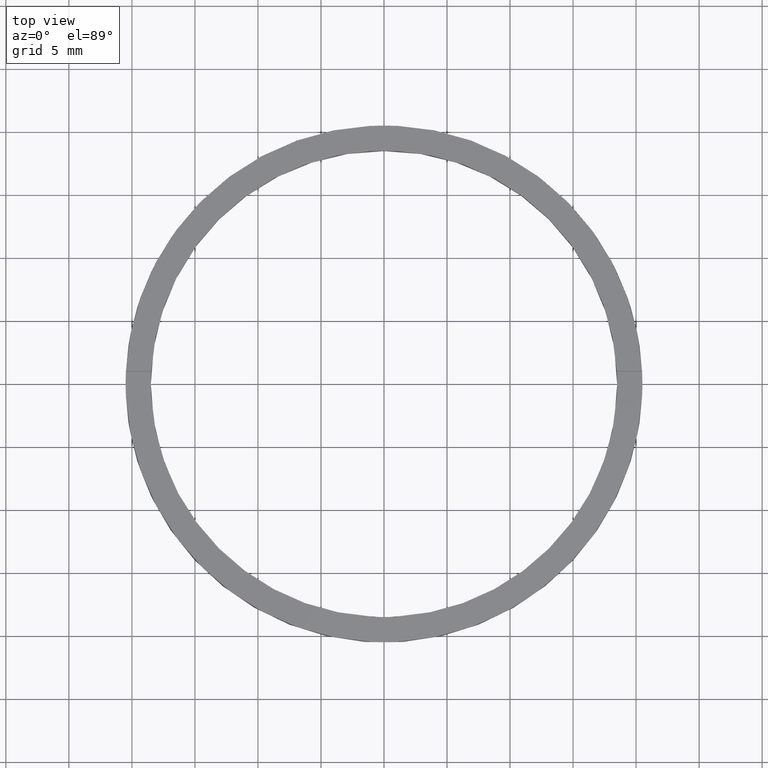
[diagram: clean part render]
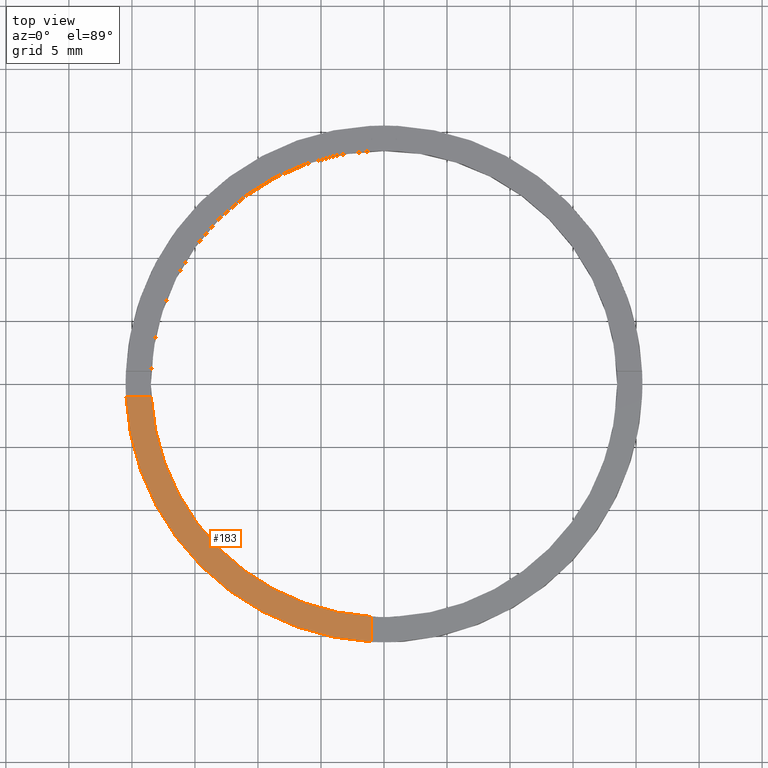
[diagram: same view with one face highlighted and labeled with its STEP entity id]
A machine part, top view. The second image highlights one B-rep face of the part: STEP entity #183.
In plain terms, the highlighted planar face has unit normal (0, 0, 1).
Its self-contained STEP definition (entity closure, byte-faithful):
#13 = CARTESIAN_POINT ( 'NONE',  ( -18.47295320191116375, -1.000000000000024425, 2.500000000000000000 ) ) ;
#47 = DIRECTION ( 'NONE',  ( 1.000000000000000000, 1.734723475976806848E-16, -0.000000000000000000 ) ) ;
#66 = CARTESIAN_POINT ( 'NONE',  ( -20.47559522944326815, -1.000000000000024647, 2.500000000000000000 ) ) ;
#134 = VECTOR ( 'NONE', #47, 1000.000000000000000 ) ;
#155 = VECTOR ( 'NONE', #366, 1000.000000000000000 ) ;
#183 = ADVANCED_FACE ( 'NONE', ( #236 ), #314, .T. ) ;
#189 = CARTESIAN_POINT ( 'NONE',  ( -1.000000000000162759, -10.50000000000018119, 2.500000000000000000 ) ) ;
#209 = CARTESIAN_POINT ( 'NONE',  ( -10.50000000000018652, -1.000000000000023093, 2.500000000000000000 ) ) ;
#236 = FACE_OUTER_BOUND ( 'NONE', #727, .T. ) ;
#290 = AXIS2_PLACEMENT_3D ( 'NONE', #547, #756, #760 ) ;
#300 = EDGE_CURVE ( 'NONE', #409, #497, #755, .T. ) ;
#302 = DIRECTION ( 'NONE',  ( 1.000000000000000000, 0.000000000000000000, -0.000000000000000000 ) ) ;
#309 = CARTESIAN_POINT ( 'NONE',  ( 0.000000000000000000, 0.000000000000000000, 2.500000000000000000 ) ) ;
#313 = AXIS2_PLACEMENT_3D ( 'NONE', #498, #586, #348 ) ;
#314 = PLANE ( 'NONE',  #561 ) ;
#348 = DIRECTION ( 'NONE',  ( 1.000000000000000000, 0.000000000000000000, 0.000000000000000000 ) ) ;
#354 = DIRECTION ( 'NONE',  ( 0.000000000000000000, 0.000000000000000000, 1.000000000000000000 ) ) ;
#366 = DIRECTION ( 'NONE',  ( 1.301042606982605074E-16, -1.000000000000000000, 0.000000000000000000 ) ) ;
#376 = CIRCLE ( 'NONE', #290, 18.50000000000000000 ) ;
#409 = VERTEX_POINT ( 'NONE', #66 ) ;
#429 = LINE ( 'NONE', #189, #155 ) ;
#442 = VERTEX_POINT ( 'NONE', #571 ) ;
#487 = EDGE_CURVE ( 'NONE', #409, #720, #649, .T. ) ;
#497 = VERTEX_POINT ( 'NONE', #730 ) ;
#498 = CARTESIAN_POINT ( 'NONE',  ( 0.000000000000000000, 0.000000000000000000, 2.500000000000000000 ) ) ;
#501 = ORIENTED_EDGE ( 'NONE', *, *, #664, .F. ) ;
#536 = EDGE_CURVE ( 'NONE', #442, #497, #429, .T. ) ;
#547 = CARTESIAN_POINT ( 'NONE',  ( 0.000000000000000000, 0.000000000000000000, 2.500000000000000000 ) ) ;
#561 = AXIS2_PLACEMENT_3D ( 'NONE', #309, #354, #302 ) ;
#571 = CARTESIAN_POINT ( 'NONE',  ( -1.000000000000161426, -18.47295320191114953, 2.500000000000000000 ) ) ;
#586 = DIRECTION ( 'NONE',  ( 0.000000000000000000, 0.000000000000000000, 1.000000000000000000 ) ) ;
#649 = LINE ( 'NONE', #209, #134 ) ;
#664 = EDGE_CURVE ( 'NONE', #720, #442, #376, .T. ) ;
#696 = ORIENTED_EDGE ( 'NONE', *, *, #487, .F. ) ;
#708 = ORIENTED_EDGE ( 'NONE', *, *, #300, .T. ) ;
#720 = VERTEX_POINT ( 'NONE', #13 ) ;
#727 = EDGE_LOOP ( 'NONE', ( #754, #501, #696, #708 ) ) ;
#730 = CARTESIAN_POINT ( 'NONE',  ( -1.000000000000161204, -20.47559522944325749, 2.500000000000000000 ) ) ;
#754 = ORIENTED_EDGE ( 'NONE', *, *, #536, .F. ) ;
#755 = CIRCLE ( 'NONE', #313, 20.50000000000000000 ) ;
#756 = DIRECTION ( 'NONE',  ( 0.000000000000000000, 0.000000000000000000, 1.000000000000000000 ) ) ;
#760 = DIRECTION ( 'NONE',  ( 1.000000000000000000, 0.000000000000000000, 0.000000000000000000 ) ) ;